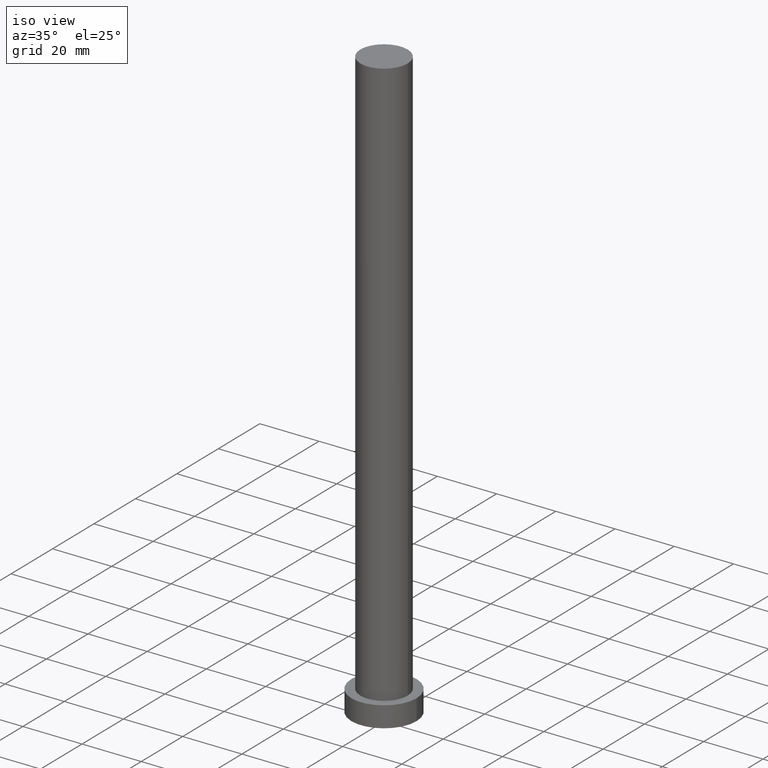
[diagram: clean part render]
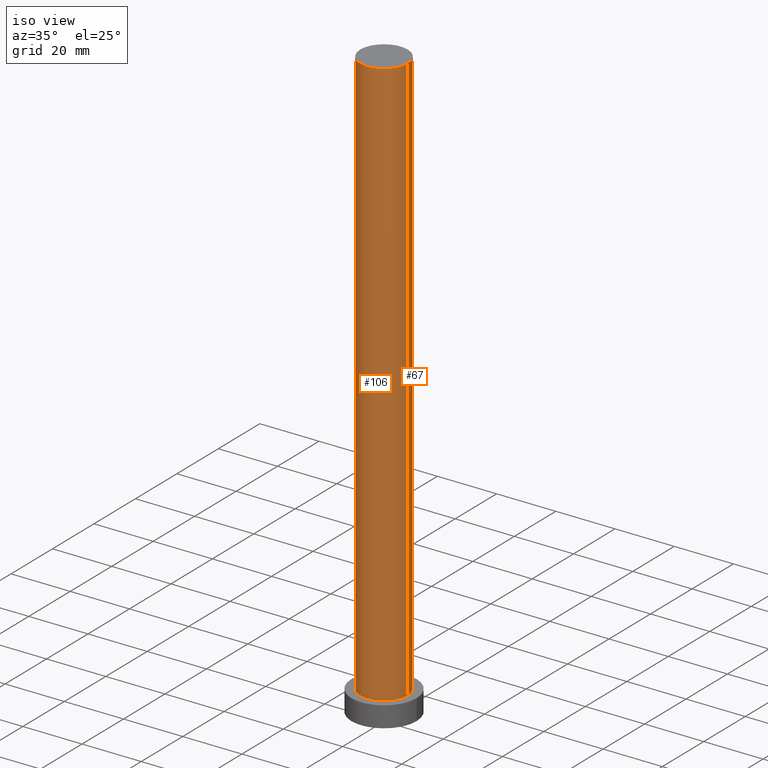
[diagram: same view with one multi-face feature highlighted, each face labeled with its STEP entity id]
A machine part, iso view. The highlighted faces form ONE feature: a constant-radius fillet chain: 2 tangent blend faces with common blend radius 8 mm. The faces share edges in the B-rep.
Their STEP definitions:
[1] entity #67 (Cylinder):
#3 = DIRECTION ( 'NONE',  ( 0.000000000000000000, 0.000000000000000000, 1.000000000000000000 ) ) ;
#20 = EDGE_CURVE ( 'NONE', #114, #151, #201, .T. ) ;
#21 = DIRECTION ( 'NONE',  ( -1.000000000000000000, 0.000000000000000000, 0.000000000000000000 ) ) ;
#25 = CARTESIAN_POINT ( 'NONE',  ( -8.000000000000000000, 0.000000000000000000, 200.0000000000000000 ) ) ;
#39 = DIRECTION ( 'NONE',  ( 1.000000000000000000, 0.000000000000000000, 0.000000000000000000 ) ) ;
#41 = CYLINDRICAL_SURFACE ( 'NONE', #129, 8.000000000000000000 ) ;
#52 = ORIENTED_EDGE ( 'NONE', *, *, #214, .F. ) ;
#64 = DIRECTION ( 'NONE',  ( 0.000000000000000000, 0.000000000000000000, 1.000000000000000000 ) ) ;
#67 = ADVANCED_FACE ( 'NONE', ( #161 ), #41, .T. ) ;
#68 = AXIS2_PLACEMENT_3D ( 'NONE', #77, #64, #39 ) ;
#70 = ORIENTED_EDGE ( 'NONE', *, *, #199, .F. ) ;
#73 = VECTOR ( 'NONE', #117, 1000.000000000000000 ) ;
#77 = CARTESIAN_POINT ( 'NONE',  ( 0.000000000000000000, 0.000000000000000000, 200.0000000000000000 ) ) ;
#79 = CARTESIAN_POINT ( 'NONE',  ( 8.000000000000000000, 9.797174393178825657E-16, 200.0000000000000000 ) ) ;
#91 = EDGE_LOOP ( 'NONE', ( #70, #226, #98, #52 ) ) ;
#98 = ORIENTED_EDGE ( 'NONE', *, *, #237, .T. ) ;
#113 = VERTEX_POINT ( 'NONE', #215 ) ;
#114 = VERTEX_POINT ( 'NONE', #198 ) ;
#117 = DIRECTION ( 'NONE',  ( -0.000000000000000000, -0.000000000000000000, -1.000000000000000000 ) ) ;
#121 = AXIS2_PLACEMENT_3D ( 'NONE', #222, #3, #166 ) ;
#124 = CARTESIAN_POINT ( 'NONE',  ( 8.000000000000000000, 9.797174393178825657E-16, 7.000000000000000000 ) ) ;
#129 = AXIS2_PLACEMENT_3D ( 'NONE', #231, #196, #21 ) ;
#136 = VECTOR ( 'NONE', #200, 1000.000000000000000 ) ;
#151 = VERTEX_POINT ( 'NONE', #124 ) ;
#155 = VERTEX_POINT ( 'NONE', #25 ) ;
#161 = FACE_OUTER_BOUND ( 'NONE', #91, .T. ) ;
#166 = DIRECTION ( 'NONE',  ( 1.000000000000000000, 0.000000000000000000, 0.000000000000000000 ) ) ;
#168 = CIRCLE ( 'NONE', #121, 8.000000000000000000 ) ;
#181 = LINE ( 'NONE', #210, #73 ) ;
#184 = CIRCLE ( 'NONE', #68, 8.000000000000000000 ) ;
#196 = DIRECTION ( 'NONE',  ( -0.000000000000000000, -0.000000000000000000, -1.000000000000000000 ) ) ;
#198 = CARTESIAN_POINT ( 'NONE',  ( 8.000000000000000000, 9.797174393178825657E-16, 200.0000000000000000 ) ) ;
#199 = EDGE_CURVE ( 'NONE', #114, #155, #184, .T. ) ;
#200 = DIRECTION ( 'NONE',  ( -0.000000000000000000, -0.000000000000000000, -1.000000000000000000 ) ) ;
#201 = LINE ( 'NONE', #79, #136 ) ;
#210 = CARTESIAN_POINT ( 'NONE',  ( -8.000000000000000000, 0.000000000000000000, 200.0000000000000000 ) ) ;
#214 = EDGE_CURVE ( 'NONE', #155, #113, #181, .T. ) ;
#215 = CARTESIAN_POINT ( 'NONE',  ( -8.000000000000000000, 0.000000000000000000, 7.000000000000000000 ) ) ;
#222 = CARTESIAN_POINT ( 'NONE',  ( 0.000000000000000000, 0.000000000000000000, 7.000000000000000000 ) ) ;
#226 = ORIENTED_EDGE ( 'NONE', *, *, #20, .T. ) ;
#231 = CARTESIAN_POINT ( 'NONE',  ( 0.000000000000000000, 0.000000000000000000, 200.0000000000000000 ) ) ;
#237 = EDGE_CURVE ( 'NONE', #151, #113, #168, .T. ) ;
[2] entity #106 (Cylinder):
#11 = ORIENTED_EDGE ( 'NONE', *, *, #214, .T. ) ;
#17 = ORIENTED_EDGE ( 'NONE', *, *, #187, .T. ) ;
#20 = EDGE_CURVE ( 'NONE', #114, #151, #201, .T. ) ;
#24 = CARTESIAN_POINT ( 'NONE',  ( 0.000000000000000000, 0.000000000000000000, 7.000000000000000000 ) ) ;
#25 = CARTESIAN_POINT ( 'NONE',  ( -8.000000000000000000, 0.000000000000000000, 200.0000000000000000 ) ) ;
#73 = VECTOR ( 'NONE', #117, 1000.000000000000000 ) ;
#79 = CARTESIAN_POINT ( 'NONE',  ( 8.000000000000000000, 9.797174393178825657E-16, 200.0000000000000000 ) ) ;
#81 = AXIS2_PLACEMENT_3D ( 'NONE', #101, #216, #234 ) ;
#82 = DIRECTION ( 'NONE',  ( -0.000000000000000000, -0.000000000000000000, -1.000000000000000000 ) ) ;
#94 = ORIENTED_EDGE ( 'NONE', *, *, #20, .F. ) ;
#96 = EDGE_LOOP ( 'NONE', ( #94, #188, #11, #17 ) ) ;
#101 = CARTESIAN_POINT ( 'NONE',  ( 0.000000000000000000, 0.000000000000000000, 200.0000000000000000 ) ) ;
#104 = DIRECTION ( 'NONE',  ( 1.000000000000000000, 0.000000000000000000, 0.000000000000000000 ) ) ;
#106 = ADVANCED_FACE ( 'NONE', ( #139 ), #120, .T. ) ;
#113 = VERTEX_POINT ( 'NONE', #215 ) ;
#114 = VERTEX_POINT ( 'NONE', #198 ) ;
#117 = DIRECTION ( 'NONE',  ( -0.000000000000000000, -0.000000000000000000, -1.000000000000000000 ) ) ;
#120 = CYLINDRICAL_SURFACE ( 'NONE', #164, 8.000000000000000000 ) ;
#124 = CARTESIAN_POINT ( 'NONE',  ( 8.000000000000000000, 9.797174393178825657E-16, 7.000000000000000000 ) ) ;
#136 = VECTOR ( 'NONE', #200, 1000.000000000000000 ) ;
#139 = FACE_OUTER_BOUND ( 'NONE', #96, .T. ) ;
#148 = AXIS2_PLACEMENT_3D ( 'NONE', #24, #250, #104 ) ;
#151 = VERTEX_POINT ( 'NONE', #124 ) ;
#155 = VERTEX_POINT ( 'NONE', #25 ) ;
#162 = DIRECTION ( 'NONE',  ( -1.000000000000000000, 0.000000000000000000, 0.000000000000000000 ) ) ;
#163 = EDGE_CURVE ( 'NONE', #155, #114, #192, .T. ) ;
#164 = AXIS2_PLACEMENT_3D ( 'NONE', #213, #82, #162 ) ;
#181 = LINE ( 'NONE', #210, #73 ) ;
#187 = EDGE_CURVE ( 'NONE', #113, #151, #221, .T. ) ;
#188 = ORIENTED_EDGE ( 'NONE', *, *, #163, .F. ) ;
#192 = CIRCLE ( 'NONE', #81, 8.000000000000000000 ) ;
#198 = CARTESIAN_POINT ( 'NONE',  ( 8.000000000000000000, 9.797174393178825657E-16, 200.0000000000000000 ) ) ;
#200 = DIRECTION ( 'NONE',  ( -0.000000000000000000, -0.000000000000000000, -1.000000000000000000 ) ) ;
#201 = LINE ( 'NONE', #79, #136 ) ;
#210 = CARTESIAN_POINT ( 'NONE',  ( -8.000000000000000000, 0.000000000000000000, 200.0000000000000000 ) ) ;
#213 = CARTESIAN_POINT ( 'NONE',  ( 0.000000000000000000, 0.000000000000000000, 200.0000000000000000 ) ) ;
#214 = EDGE_CURVE ( 'NONE', #155, #113, #181, .T. ) ;
#215 = CARTESIAN_POINT ( 'NONE',  ( -8.000000000000000000, 0.000000000000000000, 7.000000000000000000 ) ) ;
#216 = DIRECTION ( 'NONE',  ( 0.000000000000000000, 0.000000000000000000, 1.000000000000000000 ) ) ;
#221 = CIRCLE ( 'NONE', #148, 8.000000000000000000 ) ;
#234 = DIRECTION ( 'NONE',  ( 1.000000000000000000, 0.000000000000000000, 0.000000000000000000 ) ) ;
#250 = DIRECTION ( 'NONE',  ( 0.000000000000000000, 0.000000000000000000, 1.000000000000000000 ) ) ;